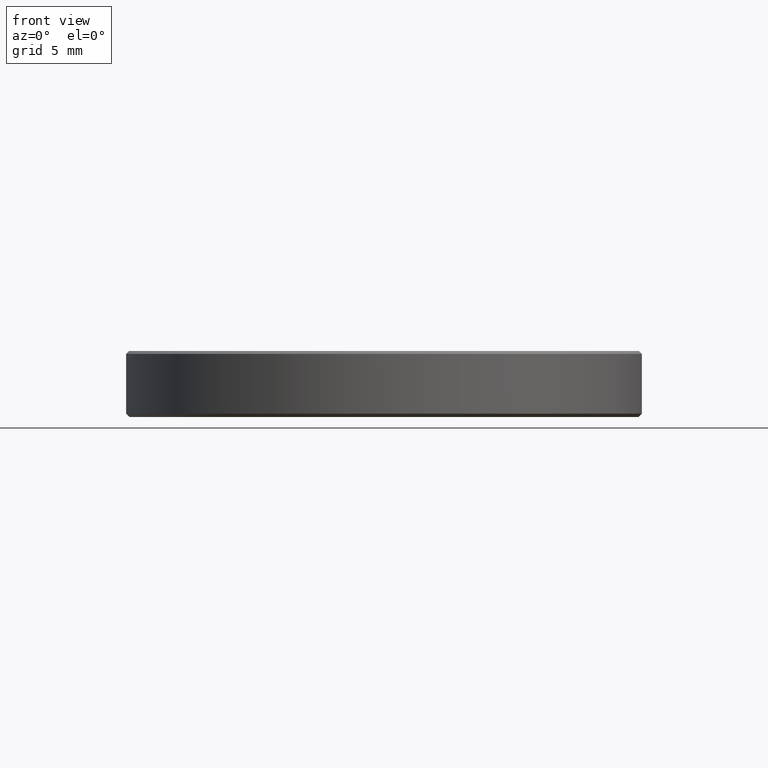
[diagram: clean part render]
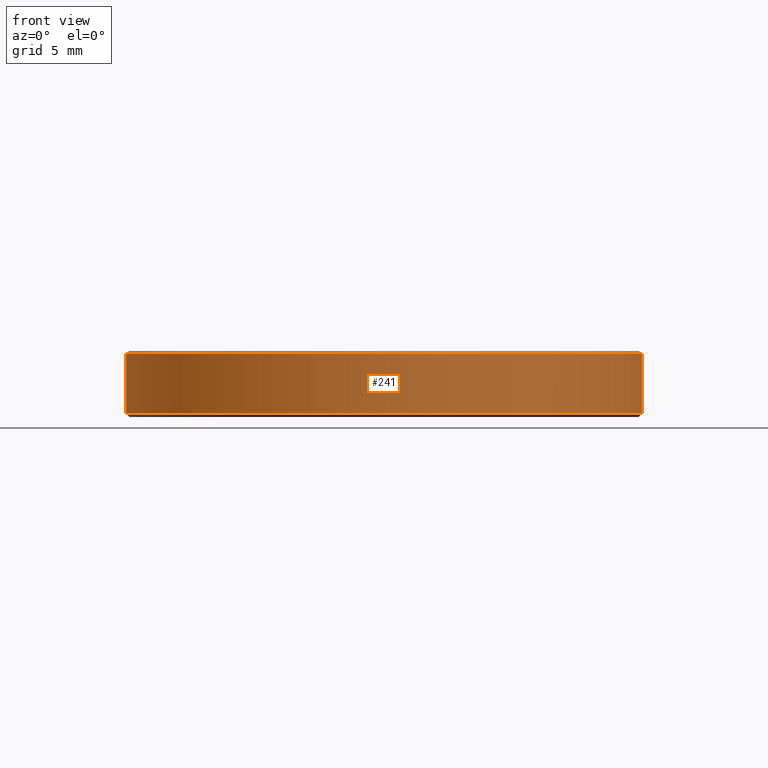
[diagram: same view with one face highlighted and labeled with its STEP entity id]
A machine part, front view. The second image highlights one B-rep face of the part: STEP entity #241.
In plain terms, the highlighted cylindrical surface (partial cylindrical patch) has radius 15 mm, axis along (-0, -0, 1).
Its self-contained STEP definition (entity closure, byte-faithful):
#12 = CIRCLE ( 'NONE', #67, 15.00000000000000000 ) ;
#14 = CARTESIAN_POINT ( 'NONE',  ( 0.000000000000000000, 0.000000000000000000, 2.500000000000000000 ) ) ;
#15 = VERTEX_POINT ( 'NONE', #207 ) ;
#16 = DIRECTION ( 'NONE',  ( -0.000000000000000000, -0.000000000000000000, 1.000000000000000000 ) ) ;
#21 = VERTEX_POINT ( 'NONE', #266 ) ;
#35 = DIRECTION ( 'NONE',  ( -0.000000000000000000, -0.000000000000000000, 1.000000000000000000 ) ) ;
#51 = CIRCLE ( 'NONE', #178, 15.00000000000000000 ) ;
#59 = ORIENTED_EDGE ( 'NONE', *, *, #232, .T. ) ;
#62 = LINE ( 'NONE', #183, #218 ) ;
#63 = VECTOR ( 'NONE', #35, 1000.000000000000000 ) ;
#67 = AXIS2_PLACEMENT_3D ( 'NONE', #136, #196, #104 ) ;
#73 = CARTESIAN_POINT ( 'NONE',  ( 0.000000000000000000, 0.000000000000000000, 3.670000000000020357 ) ) ;
#82 = ORIENTED_EDGE ( 'NONE', *, *, #161, .T. ) ;
#84 = ORIENTED_EDGE ( 'NONE', *, *, #102, .F. ) ;
#101 = DIRECTION ( 'NONE',  ( 1.000000000000000000, 0.000000000000000000, 0.000000000000000000 ) ) ;
#102 = EDGE_CURVE ( 'NONE', #187, #21, #155, .T. ) ;
#104 = DIRECTION ( 'NONE',  ( 1.000000000000000000, 0.000000000000000000, 0.000000000000000000 ) ) ;
#108 = ORIENTED_EDGE ( 'NONE', *, *, #221, .T. ) ;
#114 = DIRECTION ( 'NONE',  ( 0.000000000000000000, 0.000000000000000000, -1.000000000000000000 ) ) ;
#136 = CARTESIAN_POINT ( 'NONE',  ( 0.000000000000000000, 0.000000000000000000, 0.2000000000000031197 ) ) ;
#138 = DIRECTION ( 'NONE',  ( -0.000000000000000000, -0.000000000000000000, 1.000000000000000000 ) ) ;
#148 = EDGE_LOOP ( 'NONE', ( #84, #108, #59, #82 ) ) ;
#155 = LINE ( 'NONE', #215, #63 ) ;
#159 = CYLINDRICAL_SURFACE ( 'NONE', #224, 15.00000000000000000 ) ;
#161 = EDGE_CURVE ( 'NONE', #15, #21, #51, .T. ) ;
#163 = CARTESIAN_POINT ( 'NONE',  ( -15.00000000000000000, 1.836970198721029589E-15, 0.2000000000000031197 ) ) ;
#178 = AXIS2_PLACEMENT_3D ( 'NONE', #73, #114, #192 ) ;
#180 = CARTESIAN_POINT ( 'NONE',  ( 15.00000000000000000, 0.000000000000000000, 0.2000000000000031197 ) ) ;
#183 = CARTESIAN_POINT ( 'NONE',  ( 15.00000000000000000, 0.000000000000000000, 2.500000000000000000 ) ) ;
#187 = VERTEX_POINT ( 'NONE', #163 ) ;
#192 = DIRECTION ( 'NONE',  ( -1.000000000000000000, 0.000000000000000000, 0.000000000000000000 ) ) ;
#196 = DIRECTION ( 'NONE',  ( -0.000000000000000000, -0.000000000000000000, 1.000000000000000000 ) ) ;
#207 = CARTESIAN_POINT ( 'NONE',  ( 15.00000000000000000, 0.000000000000000000, 3.670000000000020357 ) ) ;
#215 = CARTESIAN_POINT ( 'NONE',  ( -15.00000000000000000, 1.836970198721029589E-15, 2.500000000000000000 ) ) ;
#218 = VECTOR ( 'NONE', #16, 1000.000000000000000 ) ;
#221 = EDGE_CURVE ( 'NONE', #187, #244, #12, .T. ) ;
#224 = AXIS2_PLACEMENT_3D ( 'NONE', #14, #138, #101 ) ;
#232 = EDGE_CURVE ( 'NONE', #244, #15, #62, .T. ) ;
#236 = FACE_OUTER_BOUND ( 'NONE', #148, .T. ) ;
#241 = ADVANCED_FACE ( 'NONE', ( #236 ), #159, .T. ) ;
#244 = VERTEX_POINT ( 'NONE', #180 ) ;
#266 = CARTESIAN_POINT ( 'NONE',  ( -15.00000000000000000, 1.836970198721029589E-15, 3.670000000000020357 ) ) ;